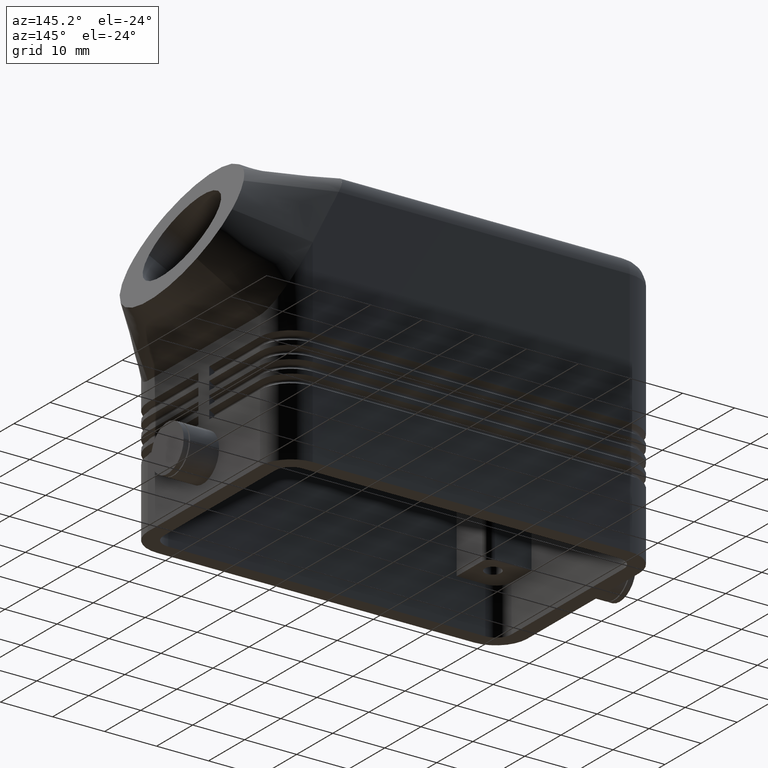
[diagram: clean part render]
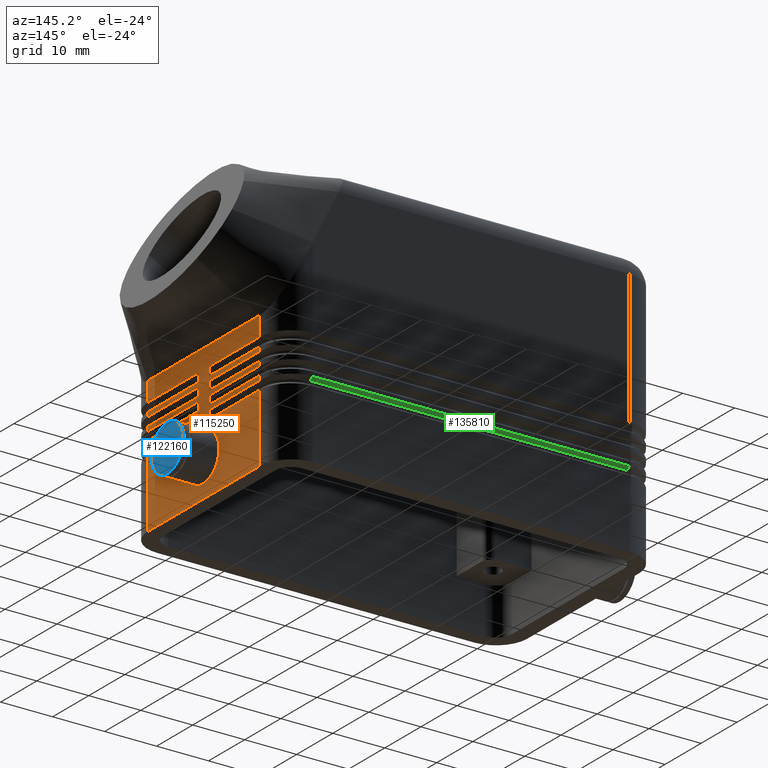
[diagram: same view with three faces highlighted in distinct colors, each labeled with its STEP entity id]
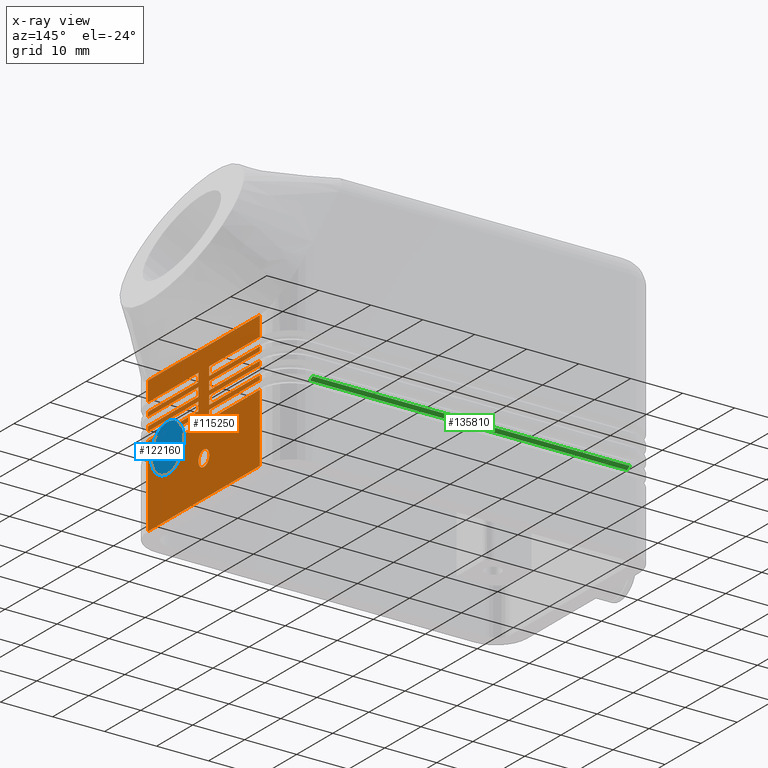
[diagram: x-ray of the same camera — body ghosted, the three highlighted faces saturated]
A machine part, auxiliary view with three faces highlighted in distinct colors.
The next image is the same camera in x-ray (body ghosted, the three faces saturated) — at least one of them is partly hidden behind the body in this view.
Their STEP definitions:

[orange] entity #115250 — the highlighted planar face has unit normal (1, 0, 0).
#60=CARTESIAN_POINT('',(36.5,15.5,13.1726497308104));
#70=DIRECTION('',(0.,0.,-1.));
#80=VECTOR('',#70,1.);
#90=LINE('',#60,#80);
#100=CARTESIAN_POINT('',(36.5,15.5,13.1726497308104));
#110=VERTEX_POINT('',#100);
#120=CARTESIAN_POINT('',(36.5,15.5,0.));
#130=VERTEX_POINT('',#120);
#140=EDGE_CURVE('',#110,#130,#90,.T.);
#7730=CARTESIAN_POINT('',(36.5,15.5,15.6726497308104));
#7740=DIRECTION('',(0.,0.,-1.));
#7750=VECTOR('',#7740,1.);
#7760=LINE('',#7730,#7750);
#7770=CARTESIAN_POINT('',(36.5,15.5,15.6726497308104));
#7780=VERTEX_POINT('',#7770);
#7790=CARTESIAN_POINT('',(36.5,15.5,14.8273502691896));
#7800=VERTEX_POINT('',#7790);
#7810=EDGE_CURVE('',#7780,#7800,#7760,.T.);
#11650=CARTESIAN_POINT('',(36.5,-15.5,0.));
#11660=DIRECTION('',(0.,0.,1.));
#11670=VECTOR('',#11660,1.);
#11680=LINE('',#11650,#11670);
#11690=CARTESIAN_POINT('',(36.5,-15.5,0.));
#11700=VERTEX_POINT('',#11690);
#11710=CARTESIAN_POINT('',(36.5,-15.5,13.1726497308104));
#11720=VERTEX_POINT('',#11710);
#11730=EDGE_CURVE('',#11700,#11720,#11680,.T.);
#15570=CARTESIAN_POINT('',(36.5,15.5,18.1726497308104));
#15580=DIRECTION('',(0.,0.,-1.));
#15590=VECTOR('',#15580,1.);
#15600=LINE('',#15570,#15590);
#15610=CARTESIAN_POINT('',(36.5,15.5,18.1726497308104));
#15620=VERTEX_POINT('',#15610);
#15630=CARTESIAN_POINT('',(36.5,15.5,17.3273502691896));
#15640=VERTEX_POINT('',#15630);
#15650=EDGE_CURVE('',#15620,#15640,#15600,.T.);
#16550=CARTESIAN_POINT('',(36.5,15.5,20.6726497308104));
#16560=DIRECTION('',(0.,0.,-1.));
#16570=VECTOR('',#16560,1.);
#16580=LINE('',#16550,#16570);
#16590=CARTESIAN_POINT('',(36.5,15.5,20.6726497308104));
#16600=VERTEX_POINT('',#16590);
#16610=CARTESIAN_POINT('',(36.5,15.5,19.8273502691896));
#16620=VERTEX_POINT('',#16610);
#16630=EDGE_CURVE('',#16600,#16620,#16580,.T.);
#17490=CARTESIAN_POINT('',(36.4989028273266,15.4972968227939,
26.0792250499371));
#17500=DIRECTION('',(0.000292433091675039,0.000720486835748497,
-0.999999697690758));
#17510=VECTOR('',#17500,1.);
#17520=LINE('',#17490,#17510);
#17530=CARTESIAN_POINT('',(36.4989028273266,15.4972968227939,
26.0792250499371));
#17540=VERTEX_POINT('',#17530);
#17550=CARTESIAN_POINT('',(36.5,15.5,22.3273502691896));
#17560=VERTEX_POINT('',#17550);
#17570=EDGE_CURVE('',#17540,#17560,#17520,.T.);
#27360=CARTESIAN_POINT('',(36.5,-15.5,14.8273502691896));
#27370=DIRECTION('',(0.,0.,1.));
#27380=VECTOR('',#27370,1.);
#27390=LINE('',#27360,#27380);
#27400=CARTESIAN_POINT('',(36.5,-15.5,14.8273502691896));
#27410=VERTEX_POINT('',#27400);
#27420=CARTESIAN_POINT('',(36.5,-15.5,15.6726497308104));
#27430=VERTEX_POINT('',#27420);
#27440=EDGE_CURVE('',#27410,#27430,#27390,.T.);
#31280=CARTESIAN_POINT('',(36.5,-15.5,17.3273502691896));
#31290=DIRECTION('',(0.,0.,1.));
#31300=VECTOR('',#31290,1.);
#31310=LINE('',#31280,#31300);
#31320=CARTESIAN_POINT('',(36.5,-15.5,17.3273502691896));
#31330=VERTEX_POINT('',#31320);
#31340=CARTESIAN_POINT('',(36.5,-15.5,18.1726497308104));
#31350=VERTEX_POINT('',#31340);
#31360=EDGE_CURVE('',#31330,#31350,#31310,.T.);
#35650=CARTESIAN_POINT('',(36.5,-15.5,19.8273502691896));
#35660=DIRECTION('',(0.,0.,1.));
#35670=VECTOR('',#35660,1.);
#35680=LINE('',#35650,#35670);
#35690=CARTESIAN_POINT('',(36.5,-15.5,19.8273502691896));
#35700=VERTEX_POINT('',#35690);
#35710=CARTESIAN_POINT('',(36.5,-15.5,20.6726497308104));
#35720=VERTEX_POINT('',#35710);
#35730=EDGE_CURVE('',#35700,#35720,#35680,.T.);
#36180=CARTESIAN_POINT('',(36.5,-15.497393419624,26.0791465085042));
#36190=VERTEX_POINT('',#36180);
#36240=CARTESIAN_POINT('',(36.5,-15.5,22.3273502691896));
#36250=DIRECTION('',(0.,0.000694755146777218,0.999999758657614));
#36260=VECTOR('',#36250,1.);
#36270=LINE('',#36240,#36260);
#36280=CARTESIAN_POINT('',(36.5,-15.5,22.3273502691896));
#36290=VERTEX_POINT('',#36280);
#36300=EDGE_CURVE('',#36290,#36190,#36270,.T.);
#60620=CARTESIAN_POINT('',(36.5,-1.5771327070799E-14,26.0770372063686));
#60630=DIRECTION('',(-7.0797679896015E-5,0.999999987528539,
0.000141175817062244));
#60640=VECTOR('',#60630,1.);
#60650=LINE('',#60620,#60640);
#60660=CARTESIAN_POINT('',(36.5,-1.5771327070799E-14,26.0770372063686));
#60670=VERTEX_POINT('',#60660);
#60680=EDGE_CURVE('',#60670,#17540,#60650,.T.);
#60700=CARTESIAN_POINT('',(36.5,-1.5771327070799E-14,26.0770372063686));
#60710=DIRECTION('',(0.,-0.999999990737456,0.000136106896108001));
#60720=VECTOR('',#60710,1.);
#60730=LINE('',#60700,#60720);
#60740=EDGE_CURVE('',#60670,#36190,#60730,.T.);
#71970=CARTESIAN_POINT('',(36.5,-1.5,22.3273502691896));
#71980=VERTEX_POINT('',#71970);
#72010=CARTESIAN_POINT('',(36.5,-1.5,0.));
#72020=DIRECTION('',(0.,-0.,-1.));
#72030=VECTOR('',#72020,1.);
#72040=LINE('',#72010,#72030);
#72050=CARTESIAN_POINT('',(36.5,-1.5,20.6726497308104));
#72060=VERTEX_POINT('',#72050);
#72070=EDGE_CURVE('',#71980,#72060,#72040,.T.);
#72320=CARTESIAN_POINT('',(36.5,0.,20.6726497308104));
#72330=DIRECTION('',(0.,-1.,-0.));
#72340=VECTOR('',#72330,1.);
#72350=LINE('',#72320,#72340);
#72360=EDGE_CURVE('',#72060,#35720,#72350,.T.);
#74680=CARTESIAN_POINT('',(36.5,0.,22.3273502691896));
#74690=DIRECTION('',(-0.,1.,-0.));
#74700=VECTOR('',#74690,1.);
#74710=LINE('',#74680,#74700);
#74720=EDGE_CURVE('',#36290,#71980,#74710,.T.);
#78680=CARTESIAN_POINT('',(36.5,-4.44089209850062E-16,6.99999999999997))
;
#78690=DIRECTION('',(-1.,0.,0.));
#78700=DIRECTION('',(0.,1.,0.));
#78710=AXIS2_PLACEMENT_3D('',#78680,#78690,#78700);
#78720=CIRCLE('',#78710,1.5);
#78730=CARTESIAN_POINT('',(36.5,-1.83690953073357E-16,8.49999999999996))
;
#78740=VERTEX_POINT('',#78730);
#78750=CARTESIAN_POINT('',(36.5,1.5,6.99999999999997));
#78760=VERTEX_POINT('',#78750);
#78770=EDGE_CURVE('',#78740,#78760,#78720,.T.);
#79040=CARTESIAN_POINT('',(36.5,-1.5,6.99999999999997));
#79050=VERTEX_POINT('',#79040);
#79080=EDGE_CURVE('',#79050,#78740,#78720,.T.);
#83750=CARTESIAN_POINT('',(36.5,-1.5,19.8273502691896));
#83760=VERTEX_POINT('',#83750);
#83790=CARTESIAN_POINT('',(36.5,-1.5,0.));
#83800=DIRECTION('',(0.,-0.,-1.));
#83810=VECTOR('',#83800,1.);
#83820=LINE('',#83790,#83810);
#83830=CARTESIAN_POINT('',(36.5,-1.5,18.1726497308104));
#83840=VERTEX_POINT('',#83830);
#83850=EDGE_CURVE('',#83760,#83840,#83820,.T.);
#84100=CARTESIAN_POINT('',(36.5,0.,18.1726497308104));
#84110=DIRECTION('',(0.,-1.,-0.));
#84120=VECTOR('',#84110,1.);
#84130=LINE('',#84100,#84120);
#84140=EDGE_CURVE('',#83840,#31350,#84130,.T.);
#86310=CARTESIAN_POINT('',(36.5,0.,19.8273502691896));
#86320=DIRECTION('',(-0.,1.,-0.));
#86330=VECTOR('',#86320,1.);
#86340=LINE('',#86310,#86330);
#86350=EDGE_CURVE('',#35700,#83760,#86340,.T.);
#87660=CARTESIAN_POINT('',(36.5,0.,1.33226762955019E-14));
#87670=DIRECTION('',(-0.,-1.,-0.));
#87680=VECTOR('',#87670,1.);
#87690=LINE('',#87660,#87680);
#87700=EDGE_CURVE('',#130,#11700,#87690,.T.);
#92840=CARTESIAN_POINT('',(36.5,-1.5,17.3273502691896));
#92850=VERTEX_POINT('',#92840);
#92880=CARTESIAN_POINT('',(36.5,-1.5,0.));
#92890=DIRECTION('',(0.,-0.,-1.));
#92900=VECTOR('',#92890,1.);
#92910=LINE('',#92880,#92900);
#92920=CARTESIAN_POINT('',(36.5,-1.5,15.6726497308104));
#92930=VERTEX_POINT('',#92920);
#92940=EDGE_CURVE('',#92850,#92930,#92910,.T.);
#93190=CARTESIAN_POINT('',(36.5,0.,15.6726497308104));
#93200=DIRECTION('',(0.,-1.,-0.));
#93210=VECTOR('',#93200,1.);
#93220=LINE('',#93190,#93210);
#93230=EDGE_CURVE('',#92930,#27430,#93220,.T.);
#95400=CARTESIAN_POINT('',(36.5,0.,17.3273502691896));
#95410=DIRECTION('',(-0.,1.,-0.));
#95420=VECTOR('',#95410,1.);
#95430=LINE('',#95400,#95420);
#95440=EDGE_CURVE('',#31330,#92850,#95430,.T.);
#98250=CARTESIAN_POINT('',(36.5,1.5,20.6726497308104));
#98260=VERTEX_POINT('',#98250);
#98290=CARTESIAN_POINT('',(36.5,1.5,0.));
#98300=DIRECTION('',(-0.,-0.,1.));
#98310=VECTOR('',#98300,1.);
#98320=LINE('',#98290,#98310);
#98330=CARTESIAN_POINT('',(36.5,1.5,22.3273502691896));
#98340=VERTEX_POINT('',#98330);
#98350=EDGE_CURVE('',#98260,#98340,#98320,.T.);
#103450=CARTESIAN_POINT('',(36.5,1.5,18.1726497308104));
#103460=VERTEX_POINT('',#103450);
#103490=CARTESIAN_POINT('',(36.5,1.5,0.));
#103500=DIRECTION('',(-0.,-0.,1.));
#103510=VECTOR('',#103500,1.);
#103520=LINE('',#103490,#103510);
#103530=CARTESIAN_POINT('',(36.5,1.5,19.8273502691896));
#103540=VERTEX_POINT('',#103530);
#103550=EDGE_CURVE('',#103460,#103540,#103520,.T.);
#108360=CARTESIAN_POINT('',(36.5,1.5,15.6726497308104));
#108370=VERTEX_POINT('',#108360);
#108400=CARTESIAN_POINT('',(36.5,1.5,0.));
#108410=DIRECTION('',(-0.,-0.,1.));
#108420=VECTOR('',#108410,1.);
#108430=LINE('',#108400,#108420);
#108440=CARTESIAN_POINT('',(36.5,1.5,17.3273502691896));
#108450=VERTEX_POINT('',#108440);
#108460=EDGE_CURVE('',#108370,#108450,#108430,.T.);
#111780=CARTESIAN_POINT('',(36.5,0.,20.6726497308104));
#111790=DIRECTION('',(0.,-1.,-0.));
#111800=VECTOR('',#111790,1.);
#111810=LINE('',#111780,#111800);
#111820=EDGE_CURVE('',#16600,#98260,#111810,.T.);
#112020=CARTESIAN_POINT('',(36.5,0.,22.3273502691896));
#112030=DIRECTION('',(-0.,1.,-0.));
#112040=VECTOR('',#112030,1.);
#112050=LINE('',#112020,#112040);
#112060=EDGE_CURVE('',#98340,#17560,#112050,.T.);
#114170=CARTESIAN_POINT('',(36.5,-18.6,28.6847409270055));
#114180=DIRECTION('',(1.,0.,0.));
#114190=DIRECTION('',(0.,-1.,0.));
#114200=AXIS2_PLACEMENT_3D('',#114170,#114180,#114190);
#114210=PLANE('',#114200);
#114220=ORIENTED_EDGE('',*,*,#60680,.F.);
#114230=ORIENTED_EDGE('',*,*,#17570,.F.);
#114240=ORIENTED_EDGE('',*,*,#112060,.T.);
#114250=ORIENTED_EDGE('',*,*,#98350,.T.);
#114260=ORIENTED_EDGE('',*,*,#111820,.T.);
#114270=ORIENTED_EDGE('',*,*,#16630,.F.);
#114280=CARTESIAN_POINT('',(36.5,0.,19.8273502691897));
#114290=DIRECTION('',(0.,1.,0.));
#114300=VECTOR('',#114290,1.);
#114310=LINE('',#114280,#114300);
#114320=EDGE_CURVE('',#103540,#16620,#114310,.T.);
#114330=ORIENTED_EDGE('',*,*,#114320,.T.);
#114340=ORIENTED_EDGE('',*,*,#103550,.T.);
#114350=CARTESIAN_POINT('',(36.5,0.,18.1726497308104));
#114360=DIRECTION('',(0.,-1.,0.));
#114370=VECTOR('',#114360,1.);
#114380=LINE('',#114350,#114370);
#114390=EDGE_CURVE('',#15620,#103460,#114380,.T.);
#114400=ORIENTED_EDGE('',*,*,#114390,.T.);
#114410=ORIENTED_EDGE('',*,*,#15650,.F.);
#114420=CARTESIAN_POINT('',(36.5,0.,17.3273502691897));
#114430=DIRECTION('',(0.,1.,0.));
#114440=VECTOR('',#114430,1.);
#114450=LINE('',#114420,#114440);
#114460=EDGE_CURVE('',#108450,#15640,#114450,.T.);
#114470=ORIENTED_EDGE('',*,*,#114460,.T.);
#114480=ORIENTED_EDGE('',*,*,#108460,.T.);
#114490=CARTESIAN_POINT('',(36.5,0.,15.6726497308104));
#114500=DIRECTION('',(0.,-1.,0.));
#114510=VECTOR('',#114500,1.);
#114520=LINE('',#114490,#114510);
#114530=EDGE_CURVE('',#7780,#108370,#114520,.T.);
#114540=ORIENTED_EDGE('',*,*,#114530,.T.);
#114550=ORIENTED_EDGE('',*,*,#7810,.F.);
#114560=CARTESIAN_POINT('',(36.5,0.,14.8273502691896));
#114570=DIRECTION('',(0.,1.,0.));
#114580=VECTOR('',#114570,1.);
#114590=LINE('',#114560,#114580);
#114600=CARTESIAN_POINT('',(36.5,1.5,14.8273502691896));
#114610=VERTEX_POINT('',#114600);
#114620=EDGE_CURVE('',#114610,#7800,#114590,.T.);
#114630=ORIENTED_EDGE('',*,*,#114620,.T.);
#114640=CARTESIAN_POINT('',(36.5,1.5,0.));
#114650=DIRECTION('',(0.,-0.,1.));
#114660=VECTOR('',#114650,1.);
#114670=LINE('',#114640,#114660);
#114680=CARTESIAN_POINT('',(36.5,1.5,13.1726497308104));
#114690=VERTEX_POINT('',#114680);
#114700=EDGE_CURVE('',#114690,#114610,#114670,.T.);
#114710=ORIENTED_EDGE('',*,*,#114700,.T.);
#114720=CARTESIAN_POINT('',(36.5,0.,13.1726497308104));
#114730=DIRECTION('',(0.,-1.,0.));
#114740=VECTOR('',#114730,1.);
#114750=LINE('',#114720,#114740);
#114760=EDGE_CURVE('',#110,#114690,#114750,.T.);
#114770=ORIENTED_EDGE('',*,*,#114760,.T.);
#114780=ORIENTED_EDGE('',*,*,#140,.F.);
#114790=ORIENTED_EDGE('',*,*,#87700,.F.);
#114800=ORIENTED_EDGE('',*,*,#11730,.F.);
#114810=CARTESIAN_POINT('',(36.5,0.,13.1726497308104));
#114820=DIRECTION('',(0.,-1.,0.));
#114830=VECTOR('',#114820,1.);
#114840=LINE('',#114810,#114830);
#114850=CARTESIAN_POINT('',(36.5,-1.5,13.1726497308104));
#114860=VERTEX_POINT('',#114850);
#114870=EDGE_CURVE('',#114860,#11720,#114840,.T.);
#114880=ORIENTED_EDGE('',*,*,#114870,.T.);
#114890=CARTESIAN_POINT('',(36.5,-1.5,0.));
#114900=DIRECTION('',(0.,-0.,-1.));
#114910=VECTOR('',#114900,1.);
#114920=LINE('',#114890,#114910);
#114930=CARTESIAN_POINT('',(36.5,-1.5,14.8273502691896));
#114940=VERTEX_POINT('',#114930);
#114950=EDGE_CURVE('',#114940,#114860,#114920,.T.);
#114960=ORIENTED_EDGE('',*,*,#114950,.T.);
#114970=CARTESIAN_POINT('',(36.5,0.,14.8273502691896));
#114980=DIRECTION('',(0.,1.,0.));
#114990=VECTOR('',#114980,1.);
#115000=LINE('',#114970,#114990);
#115010=EDGE_CURVE('',#27410,#114940,#115000,.T.);
#115020=ORIENTED_EDGE('',*,*,#115010,.T.);
#115030=ORIENTED_EDGE('',*,*,#27440,.F.);
#115040=ORIENTED_EDGE('',*,*,#93230,.T.);
#115050=ORIENTED_EDGE('',*,*,#92940,.T.);
#115060=ORIENTED_EDGE('',*,*,#95440,.T.);
#115070=ORIENTED_EDGE('',*,*,#31360,.F.);
#115080=ORIENTED_EDGE('',*,*,#84140,.T.);
#115090=ORIENTED_EDGE('',*,*,#83850,.T.);
#115100=ORIENTED_EDGE('',*,*,#86350,.T.);
#115110=ORIENTED_EDGE('',*,*,#35730,.F.);
#115120=ORIENTED_EDGE('',*,*,#72360,.T.);
#115130=ORIENTED_EDGE('',*,*,#72070,.T.);
#115140=ORIENTED_EDGE('',*,*,#74720,.T.);
#115150=ORIENTED_EDGE('',*,*,#36300,.F.);
#115160=ORIENTED_EDGE('',*,*,#60740,.T.);
#115170=EDGE_LOOP('',(#115160,#115150,#115140,#115130,#115120,#115110,
#115100,#115090,#115080,#115070,#115060,#115050,#115040,#115030,#115020,
#114960,#114880,#114800,#114790,#114780,#114770,#114710,#114630,#114550,
#114540,#114480,#114470,#114410,#114400,#114340,#114330,#114270,#114260,
#114250,#114240,#114230,#114220));
#115180=FACE_OUTER_BOUND('',#115170,.T.);
#115190=EDGE_CURVE('',#78760,#79050,#78720,.T.);
#115200=ORIENTED_EDGE('',*,*,#115190,.T.);
#115210=ORIENTED_EDGE('',*,*,#78770,.T.);
#115220=ORIENTED_EDGE('',*,*,#79080,.T.);
#115230=EDGE_LOOP('',(#115220,#115210,#115200));
#115240=FACE_BOUND('',#115230,.T.);
#115250=ADVANCED_FACE('',(#115180,#115240),#114210,.T.);

[blue] entity #122160 — the highlighted planar face has unit normal (1, 0, 0).
#106350=CARTESIAN_POINT('',(43.5,-4.50000000000002,6.99999999999996));
#106360=VERTEX_POINT('',#106350);
#106450=CARTESIAN_POINT('',(43.5,4.50000000000002,6.99999999999996));
#106460=VERTEX_POINT('',#106450);
#106490=CARTESIAN_POINT('',(43.5,-9.99200722162641E-16,6.99999999999996)
);
#106500=DIRECTION('',(-1.,0.,0.));
#106510=DIRECTION('',(0.,1.,0.));
#106520=AXIS2_PLACEMENT_3D('',#106490,#106500,#106510);
#106530=CIRCLE('',#106520,4.50000000000002);
#106540=EDGE_CURVE('',#106360,#106460,#106530,.T.);
#122060=CARTESIAN_POINT('',(43.5,-5.4,12.4));
#122070=DIRECTION('',(1.,0.,0.));
#122080=DIRECTION('',(0.,-1.,0.));
#122090=AXIS2_PLACEMENT_3D('',#122060,#122070,#122080);
#122100=PLANE('',#122090);
#122110=EDGE_CURVE('',#106460,#106360,#106530,.T.);
#122120=ORIENTED_EDGE('',*,*,#122110,.F.);
#122130=ORIENTED_EDGE('',*,*,#106540,.F.);
#122140=EDGE_LOOP('',(#122130,#122120));
#122150=FACE_OUTER_BOUND('',#122140,.T.);
#122160=ADVANCED_FACE('',(#122150),#122100,.T.);

[green] entity #135810 — the highlighted planar face has unit normal (0, 0.5, -0.866).
#7390=CARTESIAN_POINT('',(-30.5,21.5,14.8273502691896));
#7400=VERTEX_POINT('',#7390);
#7960=CARTESIAN_POINT('',(30.5,21.5,14.8273502691896));
#7970=VERTEX_POINT('',#7960);
#8710=CARTESIAN_POINT('',(-30.5,20.7,14.3654700538379));
#8720=DIRECTION('',(1.,0.,0.));
#8730=VECTOR('',#8720,1.);
#8740=LINE('',#8710,#8730);
#8750=CARTESIAN_POINT('',(-30.5,20.7,14.3654700538379));
#8760=VERTEX_POINT('',#8750);
#8770=CARTESIAN_POINT('',(30.5,20.7,14.3654700538379));
#8780=VERTEX_POINT('',#8770);
#8790=EDGE_CURVE('',#8760,#8780,#8740,.T.);
#105190=CARTESIAN_POINT('',(0.,21.5,14.8273502691896));
#105200=DIRECTION('',(-1.,0.,-0.));
#105210=VECTOR('',#105200,1.);
#105220=LINE('',#105190,#105210);
#105230=EDGE_CURVE('',#7970,#7400,#105220,.T.);
#135480=CARTESIAN_POINT('',(30.5,21.5,14.8273502691896));
#135490=DIRECTION('',(0.,-0.866025403784439,-0.499999999999999));
#135500=VECTOR('',#135490,1.);
#135510=LINE('',#135480,#135500);
#135520=EDGE_CURVE('',#7970,#8780,#135510,.T.);
#135650=CARTESIAN_POINT('',(36.6,20.62,14.3192820323028));
#135660=DIRECTION('',(0.,0.5,-0.866025403784438));
#135670=DIRECTION('',(0.,-0.866025403784438,-0.5));
#135680=AXIS2_PLACEMENT_3D('',#135650,#135660,#135670);
#135690=PLANE('',#135680);
#135700=ORIENTED_EDGE('',*,*,#135520,.T.);
#135710=ORIENTED_EDGE('',*,*,#105230,.F.);
#135720=CARTESIAN_POINT('',(-30.5,21.5,14.8273502691896));
#135730=DIRECTION('',(0.,-0.866025403784439,-0.499999999999999));
#135740=VECTOR('',#135730,1.);
#135750=LINE('',#135720,#135740);
#135760=EDGE_CURVE('',#7400,#8760,#135750,.T.);
#135770=ORIENTED_EDGE('',*,*,#135760,.F.);
#135780=ORIENTED_EDGE('',*,*,#8790,.F.);
#135790=EDGE_LOOP('',(#135780,#135770,#135710,#135700));
#135800=FACE_OUTER_BOUND('',#135790,.T.);
#135810=ADVANCED_FACE('',(#135800),#135690,.T.);